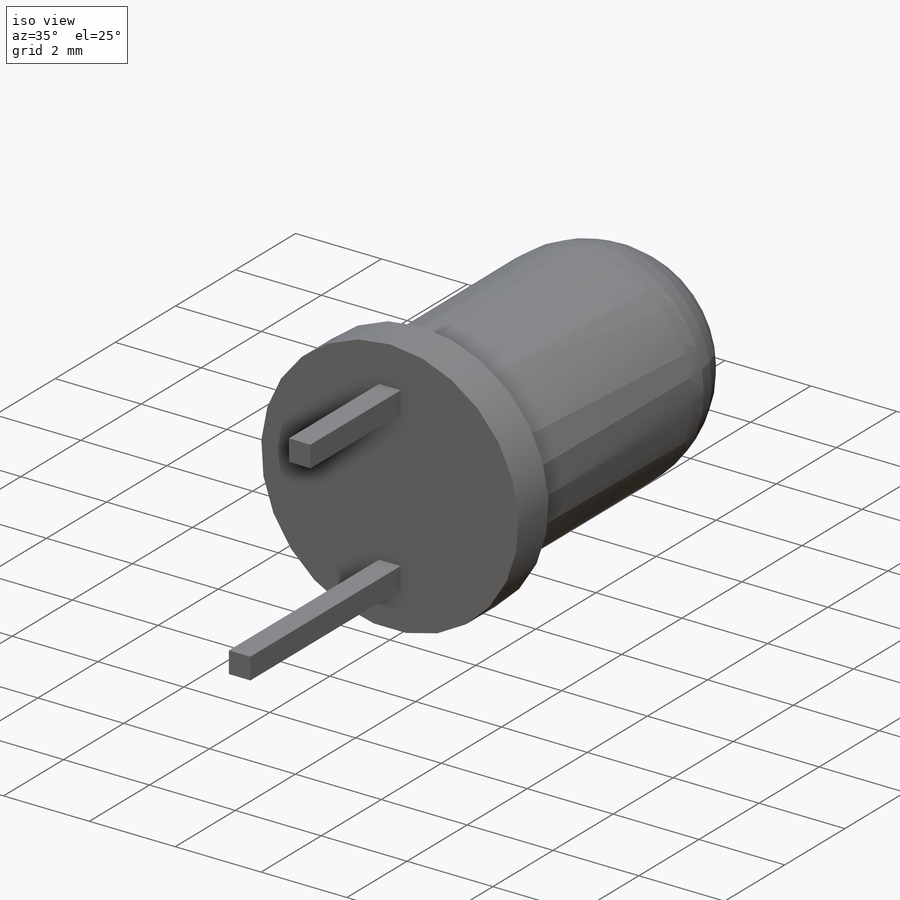
[diagram: iso view]
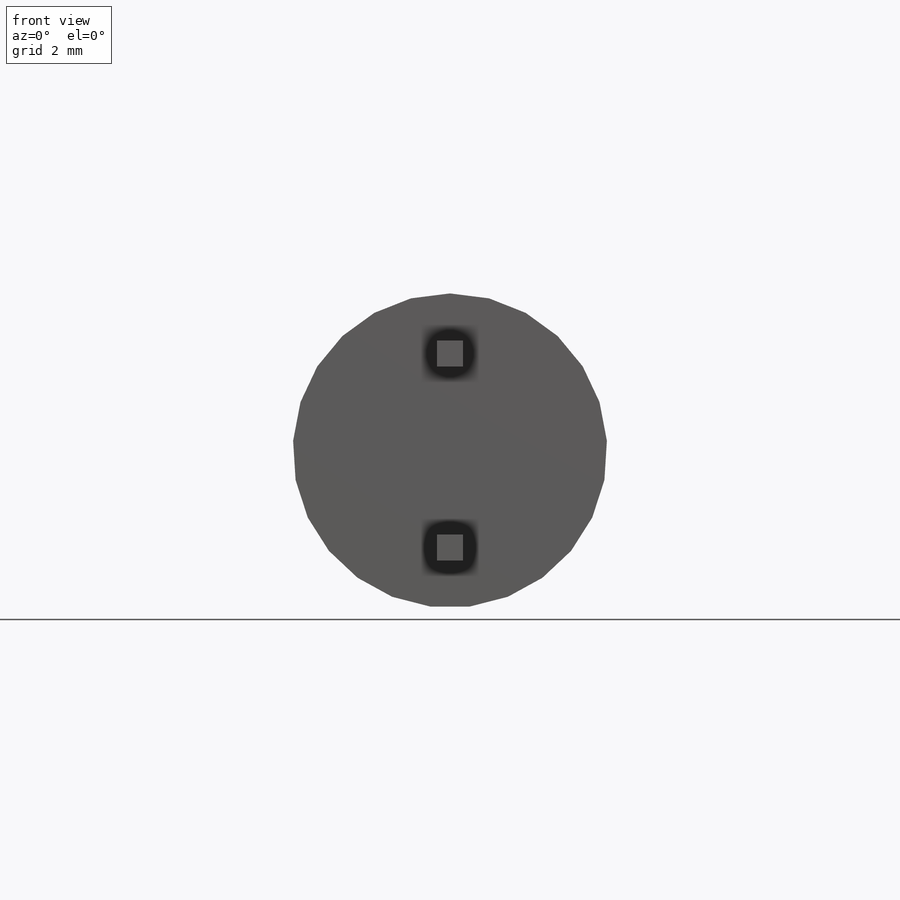
[diagram: front view]
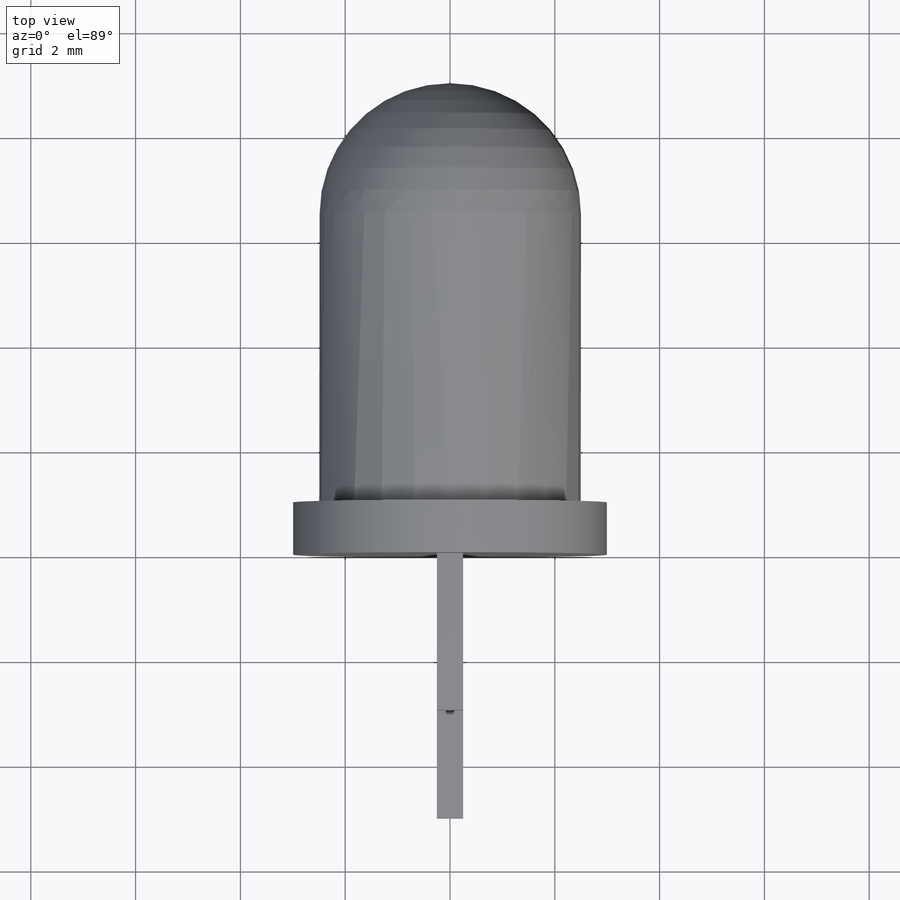
[diagram: top view]
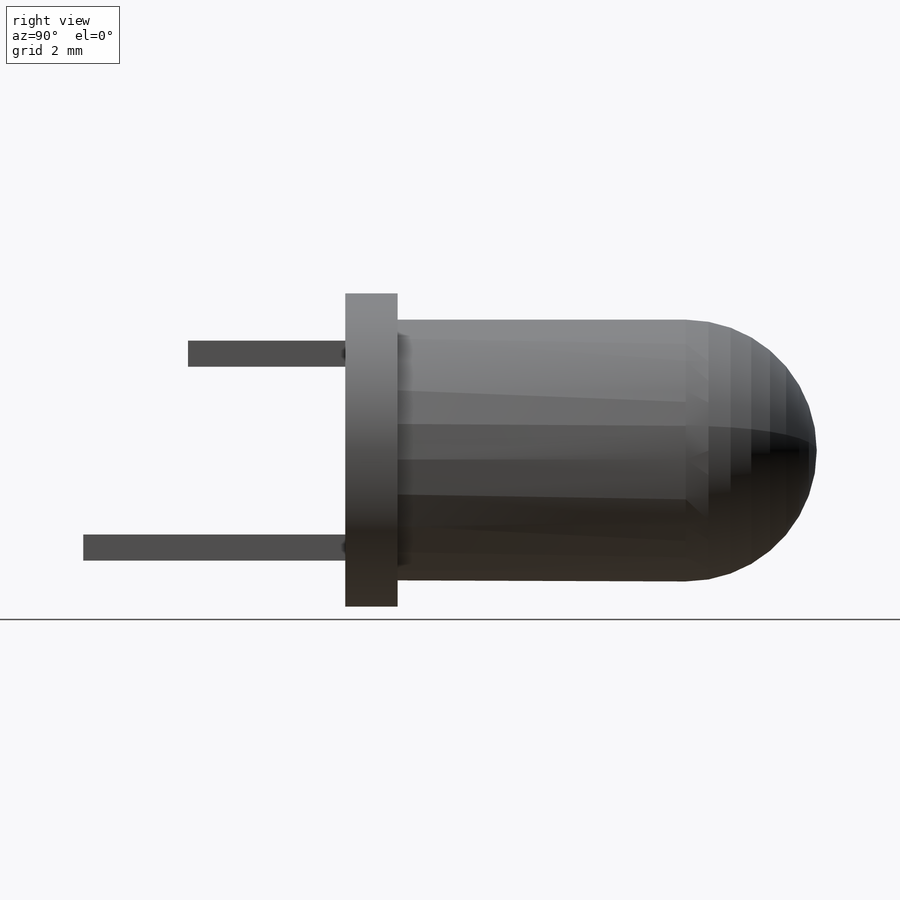
[diagram: right view]
SOLIDWORKS PART (.sldprt)
format: sldprt  version: not decoded by parser v0  size: 249,856 bytes
history: native  units: mm
features: plane x3, sketch x3, extrude x2, material x1, revolve x1, fillet x1, boolean_combine x1 (+8 scaffold rows collapsed)
feature tree (20):
  scaffold x8  (default folders/planes/origin — collapsed)
  material  "Материал <не указан>"
  plane  "Спереди"
  plane  "Сверху"
  plane  "Справа"
  sketch  "Эскиз1"  dims[D1=2.5mm D2=3.0mm D3=1.0mm D4=9.0mm]
  revolve  "Повернуть1"  Angle=360deg
  fillet  "Скругление1"  Radius=2.5mm
  sketch  "Эскиз2"  dims[c1.D1=3.2mm c1.D2=0.5mm c1.D3=0.5mm c2.D3=90.0deg c3.D3=0.5mm]
  extrude  "Бобышка-Вытянуть1"  Depth=3mm
  sketch  "Эскиз3"  dims[D1=0.0mm]
  extrude  "Бобышка-Вытянуть2"  Depth=2mm
  boolean_combine  "Соединить1"
decode coverage: 7 of 8 modeling features carry decoded parameters
note: suppression state not decoded; provenance and decode notes live in map.json
